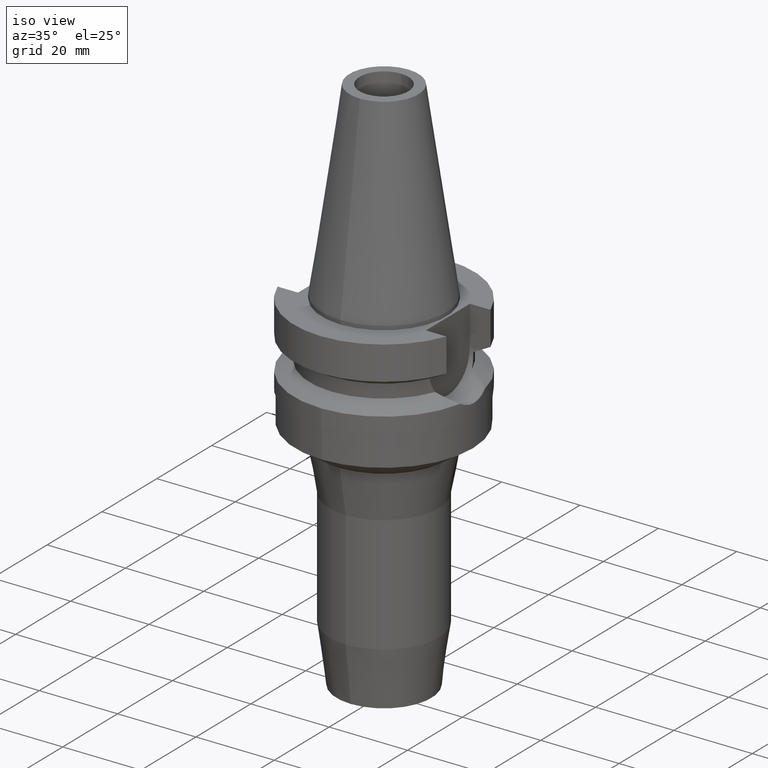
[diagram: clean part render]
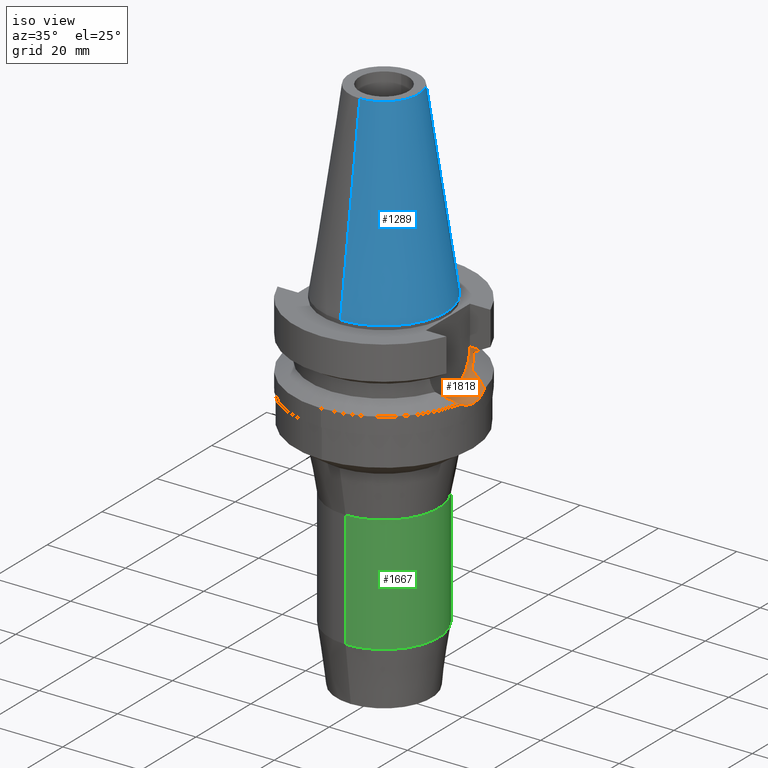
[diagram: same view with three faces highlighted in distinct colors, each labeled with its STEP entity id]
A machine part, iso view with three faces highlighted in distinct colors.
Their STEP definitions:

[orange] entity #1818 — the highlighted cylindrical surface (partial cylindrical patch) has radius 8.05 mm, axis along (1, 0, 0).
#552=CARTESIAN_POINT('',(2.255786346208E1,-4.488072640470E0,-1.763279163029E1));
#553=CARTESIAN_POINT('',(2.264814992618E1,-4.034276569683E0,-1.793755494513E1));
#554=CARTESIAN_POINT('',(2.280758013879E1,-3.091528849707E0,-1.843944818404E1));
#555=CARTESIAN_POINT('',(2.296427506530E1,-1.563892683773E0,-1.889882814013E1));
#556=CARTESIAN_POINT('',(2.3E1,-5.266131269426E-1,-1.9E1));
#557=CARTESIAN_POINT('',(2.3E1,0.E0,-1.9E1));
#562=CARTESIAN_POINT('',(2.3E1,0.E0,-1.9E1));
#563=CARTESIAN_POINT('',(2.3E1,5.266070651578E-1,-1.9E1));
#564=CARTESIAN_POINT('',(2.296427587828E1,1.563878656090E0,-1.889883209543E1));
#565=CARTESIAN_POINT('',(2.280758220138E1,3.091514805310E0,-1.843945252399E1));
#566=CARTESIAN_POINT('',(2.264815092887E1,4.034271529985E0,-1.793755832973E1));
#567=CARTESIAN_POINT('',(2.255786346208E1,4.488072640470E0,-1.763279163029E1));
#579=DIRECTION('',(-9.999999999999E-1,4.790775581496E-7,-8.420253777261E-8));
#580=VECTOR('',#579,2.667361866940E0);
#581=CARTESIAN_POINT('',(1.896736186694E1,-8.050001277873E0,-1.094999977540E1));
#582=LINE('',#581,#580);
#586=DIRECTION('',(9.999999999977E-1,-2.130104035150E-6,-3.746083749047E-7));
#587=VECTOR('',#586,2.667389665308E0);
#588=CARTESIAN_POINT('',(1.63E1,8.05E0,-1.095E1));
#589=LINE('',#588,#587);
#620=CARTESIAN_POINT('',(1.775736593456E1,-6.758398853744E0,-1.532339055353E1));
#621=CARTESIAN_POINT('',(1.832259975650E1,-6.584186968116E0,-1.559260808481E1));
#622=CARTESIAN_POINT('',(1.943949073484E1,-6.196179668971E0,-1.612686415094E1));
#623=CARTESIAN_POINT('',(2.115783804724E1,-5.402701670831E0,-1.695457862037E1));
#624=CARTESIAN_POINT('',(2.211338781417E1,-4.808998448486E0,-1.741726219016E1));
#625=CARTESIAN_POINT('',(2.255786346208E1,-4.488072640470E0,-1.763279163029E1));
#707=CARTESIAN_POINT('',(2.255786346208E1,4.488072640470E0,-1.763279163029E1));
#708=CARTESIAN_POINT('',(2.224254644997E1,4.715741731838E0,-1.747989214208E1));
#709=CARTESIAN_POINT('',(2.156000202144E1,5.161656841503E0,-1.714923464778E1));
#710=CARTESIAN_POINT('',(2.025423094137E1,5.834082358203E0,-1.651904227500E1));
#711=CARTESIAN_POINT('',(1.902860055952E1,6.338919528864E0,-1.593023843795E1));
#712=CARTESIAN_POINT('',(1.818057595948E1,6.627960416419E0,-1.552496298904E1));
#713=CARTESIAN_POINT('',(1.775736593456E1,6.758398853744E0,-1.532339055353E1));
#744=CARTESIAN_POINT('',(1.775736593456E1,6.758398853744E0,-1.532339055353E1));
#745=CARTESIAN_POINT('',(1.766904681992E1,6.990453053498E0,-1.496478666979E1));
#746=CARTESIAN_POINT('',(1.750808050314E1,7.386758691375E0,-1.422913334760E1));
#747=CARTESIAN_POINT('',(1.732661211403E1,7.799205681587E0,-1.306410032602E1));
#748=CARTESIAN_POINT('',(1.725678434434E1,7.950219642125E0,-1.227592623867E1));
#749=CARTESIAN_POINT('',(1.723531622902E1,7.996491146276E0,-1.187660607782E1));
#780=CARTESIAN_POINT('',(1.723531622902E1,7.996491146276E0,-1.187660607782E1));
#781=CARTESIAN_POINT('',(1.742711751403E1,8.008468271790E0,-1.177324424046E1));
#782=CARTESIAN_POINT('',(1.781125610070E1,8.028331856440E0,-1.156681091111E1));
#783=CARTESIAN_POINT('',(1.838870194717E1,8.046085191966E0,-1.125790844374E1));
#784=CARTESIAN_POINT('',(1.877442071819E1,8.049994318183E0,-1.105255736998E1));
#785=CARTESIAN_POINT('',(1.896738966530E1,8.049994318183E0,-1.095000099923E1));
#854=CARTESIAN_POINT('',(1.63E1,0.E0,-1.095E1));
#855=DIRECTION('',(-1.E0,0.E0,0.E0));
#856=DIRECTION('',(0.E0,1.E0,0.E0));
#857=AXIS2_PLACEMENT_3D('',#854,#855,#856);
#862=CARTESIAN_POINT('',(1.63E1,0.E0,-1.095E1));
#863=DIRECTION('',(-1.E0,0.E0,0.E0));
#864=DIRECTION('',(0.E0,0.E0,-1.E0));
#865=AXIS2_PLACEMENT_3D('',#862,#863,#864);
#1016=CARTESIAN_POINT('',(1.896736186694E1,-8.050001277873E0,
-1.094999977540E1));
#1017=CARTESIAN_POINT('',(1.877435788408E1,-8.050001277873E0,
-1.105257472423E1));
#1018=CARTESIAN_POINT('',(1.838865476369E1,-8.046082019801E0,
-1.125795281918E1));
#1019=CARTESIAN_POINT('',(1.781119204546E1,-8.028323726412E0,
-1.156685916139E1));
#1020=CARTESIAN_POINT('',(1.742708427632E1,-8.008477147752E0,
-1.177326090513E1));
#1021=CARTESIAN_POINT('',(1.723531135313E1,-7.996501749112E0,
-1.187660739354E1));
#1086=CARTESIAN_POINT('',(1.723531135313E1,-7.996501749112E0,
-1.187660739354E1));
#1087=CARTESIAN_POINT('',(1.725679532634E1,-7.950196065485E0,
-1.227622079597E1));
#1088=CARTESIAN_POINT('',(1.732669137076E1,-7.799032908326E0,
-1.306476899189E1));
#1089=CARTESIAN_POINT('',(1.750819631012E1,-7.386484310605E0,
-1.422971569773E1));
#1090=CARTESIAN_POINT('',(1.766910334109E1,-6.990304546852E0,
-1.496501616385E1));
#1091=CARTESIAN_POINT('',(1.775736593456E1,-6.758398853744E0,
-1.532339055353E1));
#1198=VERTEX_POINT('',#562);
#1199=VERTEX_POINT('',#567);
#1200=VERTEX_POINT('',#552);
#1205=VERTEX_POINT('',#620);
#1206=VERTEX_POINT('',#1086);
#1207=VERTEX_POINT('',#1016);
#1208=CARTESIAN_POINT('',(1.63E1,-8.05E0,-1.095E1));
#1209=VERTEX_POINT('',#1208);
#1210=CARTESIAN_POINT('',(1.63E1,0.E0,-1.9E1));
#1211=VERTEX_POINT('',#1210);
#1212=CARTESIAN_POINT('',(1.63E1,8.05E0,-1.095E1));
#1213=VERTEX_POINT('',#1212);
#1214=CARTESIAN_POINT('',(1.896738966530E1,8.049994318183E0,-1.095000099923E1));
#1215=VERTEX_POINT('',#1214);
#1216=VERTEX_POINT('',#780);
#1217=VERTEX_POINT('',#744);
#1789=CARTESIAN_POINT('',(1.63E1,0.E0,-1.095E1));
#1790=DIRECTION('',(1.E0,0.E0,0.E0));
#1791=DIRECTION('',(0.E0,0.E0,-1.E0));
#1792=AXIS2_PLACEMENT_3D('',#1789,#1790,#1791);
#1793=CYLINDRICAL_SURFACE('',#1792,8.05E0);
#1794=ORIENTED_EDGE('',*,*,#1775,.F.);
#1795=ORIENTED_EDGE('',*,*,#1773,.F.);
#1797=ORIENTED_EDGE('',*,*,#1796,.F.);
#1799=ORIENTED_EDGE('',*,*,#1798,.F.);
#1801=ORIENTED_EDGE('',*,*,#1800,.F.);
#1803=ORIENTED_EDGE('',*,*,#1802,.T.);
#1805=ORIENTED_EDGE('',*,*,#1804,.F.);
#1807=ORIENTED_EDGE('',*,*,#1806,.F.);
#1809=ORIENTED_EDGE('',*,*,#1808,.T.);
#1811=ORIENTED_EDGE('',*,*,#1810,.F.);
#1813=ORIENTED_EDGE('',*,*,#1812,.F.);
#1815=ORIENTED_EDGE('',*,*,#1814,.F.);
#1816=EDGE_LOOP('',(#1794,#1795,#1797,#1799,#1801,#1803,#1805,#1807,#1809,#1811,
#1813,#1815));
#1817=FACE_OUTER_BOUND('',#1816,.F.);
#558=B_SPLINE_CURVE_WITH_KNOTS('',3,(#552,#553,#554,#555,#556,#557),
.UNSPECIFIED.,.F.,.F.,(4,1,1,4),(0.E0,3.333333333333E-1,6.666666666667E-1,1.E0),
.UNSPECIFIED.);
#568=B_SPLINE_CURVE_WITH_KNOTS('',3,(#562,#563,#564,#565,#566,#567),
.UNSPECIFIED.,.F.,.F.,(4,1,1,4),(0.E0,3.333333333333E-1,6.666666666667E-1,1.E0),
.UNSPECIFIED.);
#626=B_SPLINE_CURVE_WITH_KNOTS('',3,(#620,#621,#622,#623,#624,#625),
.UNSPECIFIED.,.F.,.F.,(4,1,1,4),(0.E0,3.333333333333E-1,6.666666666667E-1,1.E0),
.UNSPECIFIED.);
#714=B_SPLINE_CURVE_WITH_KNOTS('',3,(#707,#708,#709,#710,#711,#712,#713),
.UNSPECIFIED.,.F.,.F.,(4,1,1,1,4),(0.E0,2.5E-1,5.E-1,7.5E-1,1.E0),
.UNSPECIFIED.);
#750=B_SPLINE_CURVE_WITH_KNOTS('',3,(#744,#745,#746,#747,#748,#749),
.UNSPECIFIED.,.F.,.F.,(4,1,1,4),(0.E0,3.333333333333E-1,6.666666666667E-1,1.E0),
.UNSPECIFIED.);
#786=B_SPLINE_CURVE_WITH_KNOTS('',3,(#780,#781,#782,#783,#784,#785),
.UNSPECIFIED.,.F.,.F.,(4,1,1,4),(0.E0,3.333333333333E-1,6.666666666667E-1,1.E0),
.UNSPECIFIED.);
#858=CIRCLE('',#857,8.05E0);
#866=CIRCLE('',#865,8.05E0);
#1022=B_SPLINE_CURVE_WITH_KNOTS('',3,(#1016,#1017,#1018,#1019,#1020,#1021),
.UNSPECIFIED.,.F.,.F.,(4,1,1,4),(0.E0,3.333333333333E-1,6.666666666667E-1,1.E0),
.UNSPECIFIED.);
#1092=B_SPLINE_CURVE_WITH_KNOTS('',3,(#1086,#1087,#1088,#1089,#1090,#1091),
.UNSPECIFIED.,.F.,.F.,(4,1,1,4),(0.E0,3.333333333333E-1,6.666666666667E-1,1.E0),
.UNSPECIFIED.);
#1773=EDGE_CURVE('',#1200,#1198,#558,.T.);
#1775=EDGE_CURVE('',#1198,#1199,#568,.T.);
#1796=EDGE_CURVE('',#1205,#1200,#626,.T.);
#1798=EDGE_CURVE('',#1206,#1205,#1092,.T.);
#1800=EDGE_CURVE('',#1207,#1206,#1022,.T.);
#1802=EDGE_CURVE('',#1207,#1209,#582,.T.);
#1804=EDGE_CURVE('',#1211,#1209,#866,.T.);
#1806=EDGE_CURVE('',#1213,#1211,#858,.T.);
#1808=EDGE_CURVE('',#1213,#1215,#589,.T.);
#1810=EDGE_CURVE('',#1216,#1215,#786,.T.);
#1812=EDGE_CURVE('',#1217,#1216,#750,.T.);
#1814=EDGE_CURVE('',#1199,#1217,#714,.T.);
#1818=ADVANCED_FACE('',(#1817),#1793,.F.);

[blue] entity #1289 — the highlighted conical surface has half-angle 8.297 deg.
#17=DIRECTION('',(0.E0,1.443043893540E-1,-9.895333461856E-1));
#18=VECTOR('',#17,4.891194438931E1);
#19=CARTESIAN_POINT('',(0.E0,8.816791732783E0,4.84E1));
#20=LINE('',#19,#18);
#25=CARTESIAN_POINT('',(0.E0,1.521011324541E-14,-3.694822225953E-13));
#26=DIRECTION('',(0.E0,0.E0,-1.E0));
#27=DIRECTION('',(0.E0,1.E0,0.E0));
#28=AXIS2_PLACEMENT_3D('',#25,#26,#27);
#33=DIRECTION('',(0.E0,-1.443043893540E-1,-9.895333461856E-1));
#34=VECTOR('',#33,4.891194438931E1);
#35=CARTESIAN_POINT('',(0.E0,-8.816791732783E0,4.84E1));
#36=LINE('',#35,#34);
#56=CARTESIAN_POINT('',(0.E0,1.521011324541E-14,4.84E1));
#57=DIRECTION('',(0.E0,0.E0,-1.E0));
#58=DIRECTION('',(0.E0,1.E0,0.E0));
#59=AXIS2_PLACEMENT_3D('',#56,#57,#58);
#1110=CARTESIAN_POINT('',(0.E0,8.816791732783E0,4.84E1));
#1111=CARTESIAN_POINT('',(0.E0,1.5875E1,-1.776356839400E-13));
#1112=VERTEX_POINT('',#1110);
#1113=VERTEX_POINT('',#1111);
#1114=CARTESIAN_POINT('',(0.E0,-1.5875E1,-3.694822225953E-13));
#1115=VERTEX_POINT('',#1114);
#1116=CARTESIAN_POINT('',(0.E0,-8.816791732783E0,4.84E1));
#1117=VERTEX_POINT('',#1116);
#1274=CARTESIAN_POINT('',(0.E0,1.521011324541E-14,2.42E1));
#1275=DIRECTION('',(0.E0,0.E0,-1.E0));
#1276=DIRECTION('',(0.E0,-1.E0,0.E0));
#1277=AXIS2_PLACEMENT_3D('',#1274,#1275,#1276);
#1278=CONICAL_SURFACE('',#1277,1.234589586639E1,8.297E0);
#1280=ORIENTED_EDGE('',*,*,#1279,.T.);
#1282=ORIENTED_EDGE('',*,*,#1281,.T.);
#1284=ORIENTED_EDGE('',*,*,#1283,.F.);
#1286=ORIENTED_EDGE('',*,*,#1285,.F.);
#1287=EDGE_LOOP('',(#1280,#1282,#1284,#1286));
#1288=FACE_OUTER_BOUND('',#1287,.F.);
#29=CIRCLE('',#28,1.5875E1);
#60=CIRCLE('',#59,8.816791732783E0);
#1279=EDGE_CURVE('',#1112,#1113,#20,.T.);
#1281=EDGE_CURVE('',#1113,#1115,#29,.T.);
#1283=EDGE_CURVE('',#1117,#1115,#36,.T.);
#1285=EDGE_CURVE('',#1112,#1117,#60,.T.);
#1289=ADVANCED_FACE('',(#1288),#1278,.T.);

[green] entity #1667 — the highlighted cylindrical surface (partial cylindrical patch) has radius 14 mm, axis along (0, 0, -1).
#393=CARTESIAN_POINT('',(0.E0,0.E0,-7.553768416937E1));
#394=DIRECTION('',(0.E0,0.E0,1.E0));
#395=DIRECTION('',(0.E0,-1.E0,0.E0));
#396=AXIS2_PLACEMENT_3D('',#393,#394,#395);
#416=DIRECTION('',(0.E0,-4.067263047177E-14,-1.E0));
#417=VECTOR('',#416,2.982968416937E1);
#418=CARTESIAN_POINT('',(0.E0,-1.4E1,-4.5708E1));
#419=LINE('',#418,#417);
#423=DIRECTION('',(0.E0,4.067263047177E-14,-1.E0));
#424=VECTOR('',#423,2.982968416937E1);
#425=CARTESIAN_POINT('',(0.E0,1.4E1,-4.5708E1));
#426=LINE('',#425,#424);
#437=CARTESIAN_POINT('',(0.E0,0.E0,-4.5708E1));
#438=DIRECTION('',(0.E0,0.E0,-1.E0));
#439=DIRECTION('',(0.E0,1.E0,0.E0));
#440=AXIS2_PLACEMENT_3D('',#437,#438,#439);
#1174=CARTESIAN_POINT('',(0.E0,1.4E1,-7.553768416937E1));
#1175=VERTEX_POINT('',#1174);
#1176=CARTESIAN_POINT('',(0.E0,-1.4E1,-7.553768416937E1));
#1177=VERTEX_POINT('',#1176);
#1178=CARTESIAN_POINT('',(0.E0,1.4E1,-4.5708E1));
#1179=VERTEX_POINT('',#1178);
#1180=CARTESIAN_POINT('',(0.E0,-1.4E1,-4.5708E1));
#1181=VERTEX_POINT('',#1180);
#1655=CARTESIAN_POINT('',(0.E0,1.902121408436E-14,5.532E1));
#1656=DIRECTION('',(0.E0,0.E0,-1.E0));
#1657=DIRECTION('',(0.E0,-1.E0,0.E0));
#1658=AXIS2_PLACEMENT_3D('',#1655,#1656,#1657);
#1659=CYLINDRICAL_SURFACE('',#1658,1.4E1);
#1660=ORIENTED_EDGE('',*,*,#1645,.T.);
#1661=ORIENTED_EDGE('',*,*,#1622,.F.);
#1662=ORIENTED_EDGE('',*,*,#1649,.F.);
#1664=ORIENTED_EDGE('',*,*,#1663,.F.);
#1665=EDGE_LOOP('',(#1660,#1661,#1662,#1664));
#1666=FACE_OUTER_BOUND('',#1665,.F.);
#397=CIRCLE('',#396,1.4E1);
#441=CIRCLE('',#440,1.4E1);
#1622=EDGE_CURVE('',#1177,#1175,#397,.T.);
#1645=EDGE_CURVE('',#1179,#1175,#426,.T.);
#1649=EDGE_CURVE('',#1181,#1177,#419,.T.);
#1663=EDGE_CURVE('',#1179,#1181,#441,.T.);
#1667=ADVANCED_FACE('',(#1666),#1659,.T.);